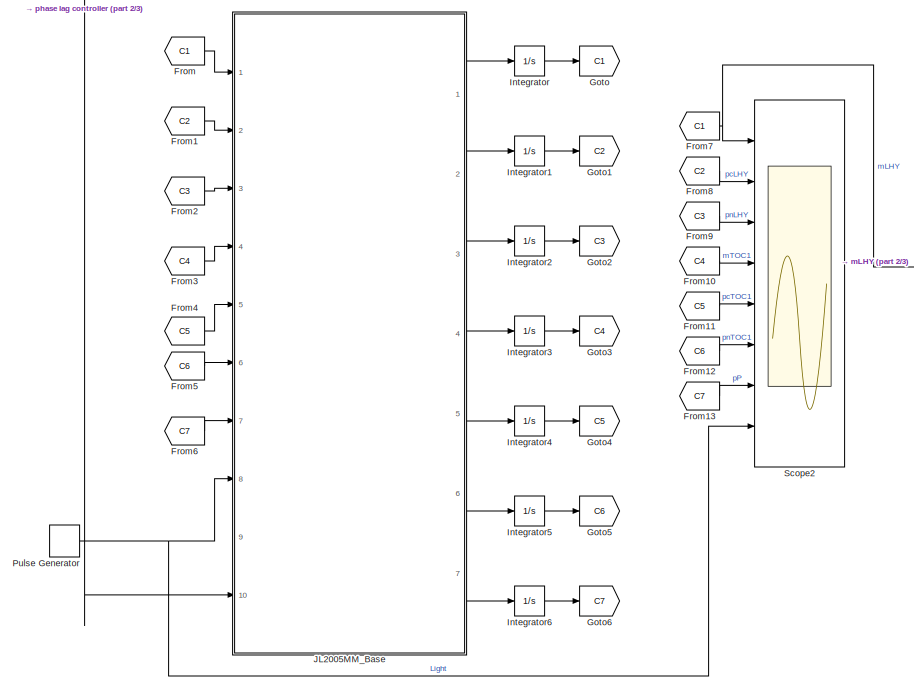
[diagram: root canvas - part 1/3, top left region]
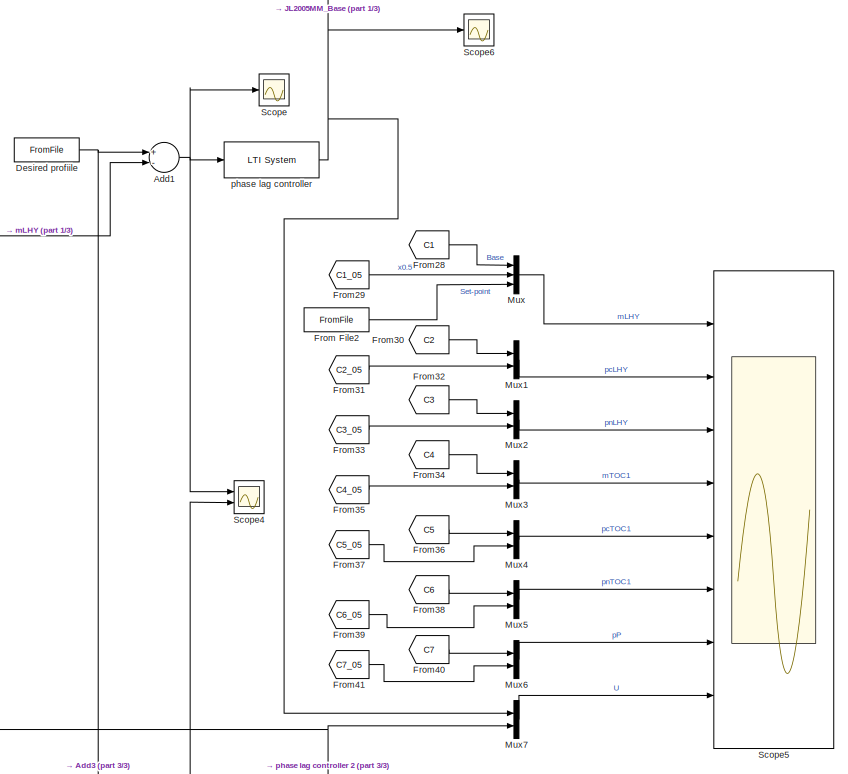
[diagram: root canvas - part 2/3, top right region]
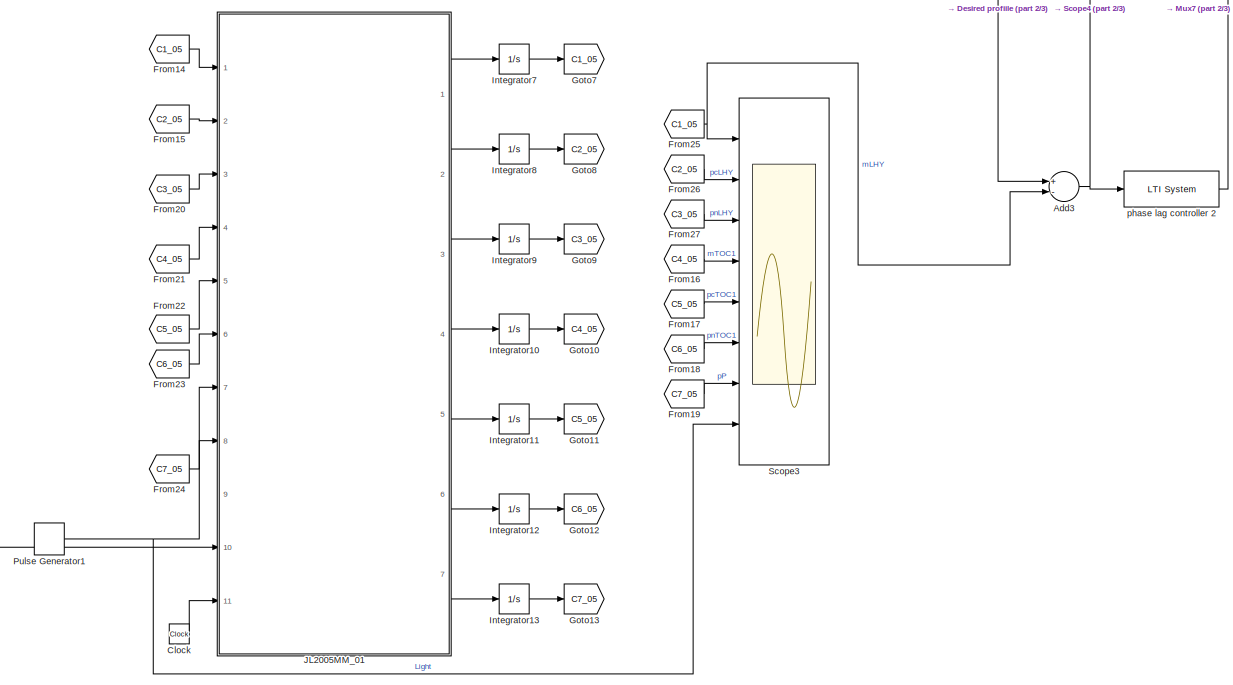
[diagram: root canvas - part 3/3, bottom center region]
MODEL slx_00e424663742
KIND model
CONFIG AbsTol = auto
CONFIG EnableMultiTasking = off
CONFIG FixedStep = auto
CONFIG MaxStep = auto
CONFIG MinStep = auto
CONFIG RelTol = 1e-3
CONFIG SampleTimeConstraint = Unconstrained
CONFIG Solver = VariableStepAuto
CONFIG SolverName = VariableStepAuto
CONFIG StartTime = 0.0
CONFIG StopTime = 96
BLOCK [Sum] Add1
  InputSameDT = off
  Inputs = +-
  OutDataTypeStr = Inherit: Inherit via internal rule
  Ports = [2, 1]
  SaturateOnIntegerOverflow = off
BLOCK [Sum] Add3
  InputSameDT = off
  Inputs = +-
  OutDataTypeStr = Inherit: Inherit via internal rule
  Ports = [2, 1]
  SaturateOnIntegerOverflow = off
BLOCK [Clock] Clock
BLOCK [FromFile] Desired profiile
  FileName = JL2005MMsetpoint.mat
  SampleTime = 0
BLOCK [From] From
  GotoTag = C1
BLOCK [FromFile] From File2
  FileName = JL2005MMsetpoint.mat
  SampleTime = 0
BLOCK [From] From1
  GotoTag = C2
BLOCK [From] From10
  GotoTag = C4
BLOCK [From] From11
  GotoTag = C5
BLOCK [From] From12
  GotoTag = C6
BLOCK [From] From13
  GotoTag = C7
BLOCK [From] From14
  GotoTag = C1_05
BLOCK [From] From15
  GotoTag = C2_05
BLOCK [From] From16
  GotoTag = C4_05
BLOCK [From] From17
  GotoTag = C5_05
BLOCK [From] From18
  GotoTag = C6_05
BLOCK [From] From19
  GotoTag = C7_05
BLOCK [From] From2
  GotoTag = C3
BLOCK [From] From20
  GotoTag = C3_05
BLOCK [From] From21
  GotoTag = C4_05
BLOCK [From] From22
  GotoTag = C5_05
BLOCK [From] From23
  GotoTag = C6_05
BLOCK [From] From24
  GotoTag = C7_05
BLOCK [From] From25
  GotoTag = C1_05
BLOCK [From] From26
  GotoTag = C2_05
BLOCK [From] From27
  GotoTag = C3_05
BLOCK [From] From28
  GotoTag = C1
BLOCK [From] From29
  GotoTag = C1_05
BLOCK [From] From3
  GotoTag = C4
BLOCK [From] From30
  GotoTag = C2
BLOCK [From] From31
  GotoTag = C2_05
BLOCK [From] From32
  GotoTag = C3
BLOCK [From] From33
  GotoTag = C3_05
BLOCK [From] From34
  GotoTag = C4
BLOCK [From] From35
  GotoTag = C4_05
BLOCK [From] From36
  GotoTag = C5
BLOCK [From] From37
  GotoTag = C5_05
BLOCK [From] From38
  GotoTag = C6
BLOCK [From] From39
  GotoTag = C6_05
BLOCK [From] From4
  GotoTag = C5
BLOCK [From] From40
  GotoTag = C7
BLOCK [From] From41
  GotoTag = C7_05
BLOCK [From] From5
  GotoTag = C6
BLOCK [From] From6
  GotoTag = C7
BLOCK [From] From7
  GotoTag = C1
BLOCK [From] From8
  GotoTag = C2
BLOCK [From] From9
  GotoTag = C3
BLOCK [Goto] Goto
  GotoTag = C1
BLOCK [Goto] Goto1
  GotoTag = C2
BLOCK [Goto] Goto10
  GotoTag = C4_05
BLOCK [Goto] Goto11
  GotoTag = C5_05
BLOCK [Goto] Goto12
  GotoTag = C6_05
BLOCK [Goto] Goto13
  GotoTag = C7_05
BLOCK [Goto] Goto2
  GotoTag = C3
BLOCK [Goto] Goto3
  GotoTag = C4
BLOCK [Goto] Goto4
  GotoTag = C5
BLOCK [Goto] Goto5
  GotoTag = C6
BLOCK [Goto] Goto6
  GotoTag = C7
BLOCK [Goto] Goto7
  GotoTag = C1_05
BLOCK [Goto] Goto8
  GotoTag = C2_05
BLOCK [Goto] Goto9
  GotoTag = C3_05
BLOCK [Integrator] Integrator
  InitialCondition = 2.3718
  Ports = [1, 1]
BLOCK [Integrator] Integrator1
  InitialCondition = 1.2970
  Ports = [1, 1]
BLOCK [Integrator] Integrator10
  InitialCondition = 0.0740
  Ports = [1, 1]
BLOCK [Integrator] Integrator11
  InitialCondition = 1.0775
  Ports = [1, 1]
BLOCK [Integrator] Integrator12
  InitialCondition = 1.3873
  Ports = [1, 1]
BLOCK [Integrator] Integrator13
  InitialCondition = 0.1463
  Ports = [1, 1]
BLOCK [Integrator] Integrator2
  InitialCondition = 0.6887
  Ports = [1, 1]
BLOCK [Integrator] Integrator3
  InitialCondition = 0.0740
  Ports = [1, 1]
BLOCK [Integrator] Integrator4
  InitialCondition = 1.0775
  Ports = [1, 1]
BLOCK [Integrator] Integrator5
  InitialCondition = 1.3873
  Ports = [1, 1]
BLOCK [Integrator] Integrator6
  InitialCondition = 0.1463
  Ports = [1, 1]
BLOCK [Integrator] Integrator7
  InitialCondition = 2.3718
  Ports = [1, 1]
BLOCK [Integrator] Integrator8
  InitialCondition = 1.2970
  Ports = [1, 1]
BLOCK [Integrator] Integrator9
  InitialCondition = 0.6887
  Ports = [1, 1]
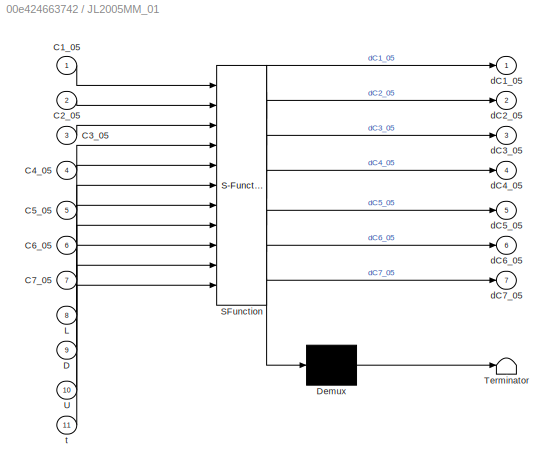
BLOCK [SubSystem] JL2005MM_01
  ErrorFcn = Stateflow.Translate.translate
  PermitHierarchicalResolution = ExplicitOnly
  Ports = [11, 7]
  RequestExecContextInheritance = off
  SFBlockType = MATLAB Function
  TreatAsAtomicUnit = on
  Variant = off
BLOCK [Demux] JL2005MM_01/ Demux 
  Outputs = 1
  Ports = [1, 1]
BLOCK [S-Function] JL2005MM_01/ SFunction 
  EnableBusSupport = on
  FunctionName = sf_sfun
  PortCounts = [11 8]
  Ports = [11, 8]
  SFcnIsStateOwnerBlock = off
  SFunctionDeploymentMode = off
  Tag = Stateflow S-Function S1File_JL2005MM 1
BLOCK [Terminator] JL2005MM_01/ Terminator 
BLOCK [Inport] JL2005MM_01/C1_05
  IconDisplay = Port number
BLOCK [Inport] JL2005MM_01/C2_05
  IconDisplay = Port number
  Port = 2
BLOCK [Inport] JL2005MM_01/C3_05
  IconDisplay = Port number
  Port = 3
BLOCK [Inport] JL2005MM_01/C4_05
  IconDisplay = Port number
  Port = 4
BLOCK [Inport] JL2005MM_01/C5_05
  IconDisplay = Port number
  Port = 5
BLOCK [Inport] JL2005MM_01/C6_05
  IconDisplay = Port number
  Port = 6
BLOCK [Inport] JL2005MM_01/C7_05
  IconDisplay = Port number
  Port = 7
BLOCK [Inport] JL2005MM_01/D
  IconDisplay = Port number
  Port = 9
BLOCK [Inport] JL2005MM_01/L
  IconDisplay = Port number
  Port = 8
BLOCK [Inport] JL2005MM_01/U
  IconDisplay = Port number
  Port = 10
BLOCK [Outport] JL2005MM_01/dC1_05
  IconDisplay = Port number
BLOCK [Outport] JL2005MM_01/dC2_05
  IconDisplay = Port number
  Port = 2
BLOCK [Outport] JL2005MM_01/dC3_05
  IconDisplay = Port number
  Port = 3
BLOCK [Outport] JL2005MM_01/dC4_05
  IconDisplay = Port number
  Port = 4
BLOCK [Outport] JL2005MM_01/dC5_05
  IconDisplay = Port number
  Port = 5
BLOCK [Outport] JL2005MM_01/dC6_05
  IconDisplay = Port number
  Port = 6
BLOCK [Outport] JL2005MM_01/dC7_05
  IconDisplay = Port number
  Port = 7
BLOCK [Inport] JL2005MM_01/t
  IconDisplay = Port number
  Port = 11
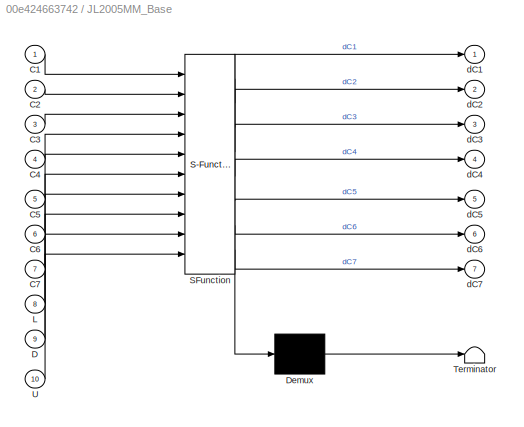
BLOCK [SubSystem] JL2005MM_Base
  ErrorFcn = Stateflow.Translate.translate
  PermitHierarchicalResolution = ExplicitOnly
  Ports = [10, 7]
  RequestExecContextInheritance = off
  SFBlockType = MATLAB Function
  TreatAsAtomicUnit = on
  Variant = off
BLOCK [Demux] JL2005MM_Base/ Demux 
  Outputs = 1
  Ports = [1, 1]
BLOCK [S-Function] JL2005MM_Base/ SFunction 
  EnableBusSupport = on
  FunctionName = sf_sfun
  PortCounts = [10 8]
  Ports = [10, 8]
  SFcnIsStateOwnerBlock = off
  SFunctionDeploymentMode = off
  Tag = Stateflow S-Function S1File_JL2005MM 2
BLOCK [Terminator] JL2005MM_Base/ Terminator 
BLOCK [Inport] JL2005MM_Base/C1
  IconDisplay = Port number
BLOCK [Inport] JL2005MM_Base/C2
  IconDisplay = Port number
  Port = 2
BLOCK [Inport] JL2005MM_Base/C3
  IconDisplay = Port number
  Port = 3
BLOCK [Inport] JL2005MM_Base/C4
  IconDisplay = Port number
  Port = 4
BLOCK [Inport] JL2005MM_Base/C5
  IconDisplay = Port number
  Port = 5
BLOCK [Inport] JL2005MM_Base/C6
  IconDisplay = Port number
  Port = 6
BLOCK [Inport] JL2005MM_Base/C7
  IconDisplay = Port number
  Port = 7
BLOCK [Inport] JL2005MM_Base/D
  IconDisplay = Port number
  Port = 9
BLOCK [Inport] JL2005MM_Base/L
  IconDisplay = Port number
  Port = 8
BLOCK [Inport] JL2005MM_Base/U
  IconDisplay = Port number
  Port = 10
BLOCK [Outport] JL2005MM_Base/dC1
  IconDisplay = Port number
BLOCK [Outport] JL2005MM_Base/dC2
  IconDisplay = Port number
  Port = 2
BLOCK [Outport] JL2005MM_Base/dC3
  IconDisplay = Port number
  Port = 3
BLOCK [Outport] JL2005MM_Base/dC4
  IconDisplay = Port number
  Port = 4
BLOCK [Outport] JL2005MM_Base/dC5
  IconDisplay = Port number
  Port = 5
BLOCK [Outport] JL2005MM_Base/dC6
  IconDisplay = Port number
  Port = 6
BLOCK [Outport] JL2005MM_Base/dC7
  IconDisplay = Port number
  Port = 7
BLOCK [Mux] Mux
  DisplayOption = bar
  Inputs = 3
  Ports = [3, 1]
BLOCK [Mux] Mux1
  DisplayOption = bar
  Inputs = 2
  Ports = [2, 1]
BLOCK [Mux] Mux2
  DisplayOption = bar
  Inputs = 2
  Ports = [2, 1]
BLOCK [Mux] Mux3
  DisplayOption = bar
  Inputs = 2
  Ports = [2, 1]
BLOCK [Mux] Mux4
  DisplayOption = bar
  Inputs = 2
  Ports = [2, 1]
BLOCK [Mux] Mux5
  DisplayOption = bar
  Inputs = 2
  Ports = [2, 1]
BLOCK [Mux] Mux6
  DisplayOption = bar
  Inputs = 2
  Ports = [2, 1]
BLOCK [Mux] Mux7
  DisplayOption = bar
  Inputs = 2
  Ports = [2, 1]
BLOCK [DiscretePulseGenerator] Pulse Generator
  Period = 24
  Ports = [0, 1]
  PulseType = Time based
  PulseWidth = 50
BLOCK [DiscretePulseGenerator] Pulse Generator1
  Period = 24
  Ports = [0, 1]
  PulseType = Time based
  PulseWidth = 50
BLOCK [Scope] Scope
  NumInputPorts = 1
  Ports = [1]
  ScopeSpecificationString = Simulink.scopes.TimeScopeBlockCfg('CurrentConfiguration', extmgr.ConfigurationSet(extmgr.Configuration('Core','General UI',true),extmgr.Configuration('Core','Source UI',true),extmgr.Configuration('Sources','WiredSimulink',true,'DataLoggingVariableName','ScopeData1'),extmgr.Configuration('Visuals','Time Domain',true,'SerializedDisplays',{struct('MinYLimReal','-0.30754','MaxYLimReal','0.61705','YLab...<+1417ch>
BLOCK [Scope] Scope2
  NumInputPorts = 8
  Ports = [8]
  ScopeSpecificationString = Simulink.scopes.TimeScopeBlockCfg('CurrentConfiguration', extmgr.ConfigurationSet(extmgr.Configuration('Core','General UI',true),extmgr.Configuration('Core','Source UI',true),extmgr.Configuration('Sources','WiredSimulink',true),extmgr.Configuration('Visuals','Time Domain',true,'SerializedDisplays',{struct('MinYLimReal','-0.29647','MaxYLimReal','2.66828','YLabelReal','','MinYLimMag','0.00000','MaxY...<+6220ch>
BLOCK [Scope] Scope3
  NumInputPorts = 8
  Ports = [8]
  ScopeSpecificationString = Simulink.scopes.TimeScopeBlockCfg('CurrentConfiguration', extmgr.ConfigurationSet(extmgr.Configuration('Core','General UI',true),extmgr.Configuration('Core','Source UI',true),extmgr.Configuration('Sources','WiredSimulink',true,'DataLoggingVariableName','ScopeData3'),extmgr.Configuration('Visuals','Time Domain',true,'SerializedDisplays',{struct('MinYLimReal','-0.30466','MaxYLimReal','2.81068','YLab...<+6227ch>
BLOCK [Scope] Scope4
  NumInputPorts = 2
  Ports = [2]
  ScopeSpecificationString = Simulink.scopes.TimeScopeBlockCfg('CurrentConfiguration', extmgr.ConfigurationSet(extmgr.Configuration('Core','General UI',true),extmgr.Configuration('Core','Source UI',true),extmgr.Configuration('Sources','WiredSimulink',true,'DataLoggingVariableName','ScopeData4'),extmgr.Configuration('Visuals','Time Domain',true,'SerializedDisplays',{struct('MinYLimReal','-0.36909','MaxYLimReal','1.17103','YLab...<+1424ch>
BLOCK [Scope] Scope5
  NumInputPorts = 8
  Ports = [8]
  ScopeSpecificationString = Simulink.scopes.TimeScopeBlockCfg('CurrentConfiguration', extmgr.ConfigurationSet(extmgr.Configuration('Core','General UI',true),extmgr.Configuration('Core','Source UI',true),extmgr.Configuration('Sources','WiredSimulink',true,'DataLoggingVariableName','ScopeData5'),extmgr.Configuration('Visuals','Time Domain',true,'SerializedDisplays',{struct('MinYLimReal','-93.66869','MaxYLimReal','13.12331','YL...<+6333ch>
BLOCK [Scope] Scope6
  NumInputPorts = 1
  Ports = [1]
  ScopeSpecificationString = Simulink.scopes.TimeScopeBlockCfg('CurrentConfiguration', extmgr.ConfigurationSet(extmgr.Configuration('Core','General UI',true),extmgr.Configuration('Core','Source UI',true),extmgr.Configuration('Sources','WiredSimulink',true,'DataLoggingVariableName','ScopeData1'),extmgr.Configuration('Visuals','Time Domain',true,'SerializedDisplays',{struct('MinYLimReal','-0.17351','MaxYLimReal','1.5616','YLabe...<+1438ch>
BLOCK [Reference] phase lag controller  REF=cstblocks/LTI System
  Ports = [1, 1]
  SourceBlock = cstblocks/LTI System
  SourceProductBaseCode = CT
  SourceProductName = Control System Toolbox
  SourceType = LTI Block
BLOCK [Reference] phase lag controller 2  REF=cstblocks/LTI System
  Ports = [1, 1]
  SourceBlock = cstblocks/LTI System
  SourceProductBaseCode = CT
  SourceProductName = Control System Toolbox
  SourceType = LTI Block
NET Add1:1 -> Scope4:1, Scope:1, phase lag controller:1
NET Add3:1 -> Scope4:2, phase lag controller 2:1
LINE Clock:1 -> JL2005MM_01:11
NET Desired profiile:1 -> Add1:1, Add3:1
LINE From File2:1 -> Mux:3
LINE From10:1 -> Scope2:4
LINE From11:1 -> Scope2:5
LINE From12:1 -> Scope2:6
LINE From13:1 -> Scope2:7
LINE From14:1 -> JL2005MM_01:1
LINE From15:1 -> JL2005MM_01:2
LINE From16:1 -> Scope3:4
LINE From17:1 -> Scope3:5
LINE From18:1 -> Scope3:6
LINE From19:1 -> Scope3:7
LINE From1:1 -> JL2005MM_Base:2
LINE From20:1 -> JL2005MM_01:3
LINE From21:1 -> JL2005MM_01:4
LINE From22:1 -> JL2005MM_01:5
LINE From23:1 -> JL2005MM_01:6
LINE From24:1 -> JL2005MM_01:7
NET From25:1 -> Add3:2, Scope3:1
LINE From26:1 -> Scope3:2
LINE From27:1 -> Scope3:3
LINE From28:1 -> Mux:1
LINE From29:1 -> Mux:2
LINE From2:1 -> JL2005MM_Base:3
LINE From30:1 -> Mux1:1
LINE From31:1 -> Mux1:2
LINE From32:1 -> Mux2:1
LINE From33:1 -> Mux2:2
LINE From34:1 -> Mux3:1
LINE From35:1 -> Mux3:2
LINE From36:1 -> Mux4:1
LINE From37:1 -> Mux4:2
LINE From38:1 -> Mux5:1
LINE From39:1 -> Mux5:2
LINE From3:1 -> JL2005MM_Base:4
LINE From40:1 -> Mux6:1
LINE From41:1 -> Mux6:2
LINE From4:1 -> JL2005MM_Base:5
LINE From5:1 -> JL2005MM_Base:6
LINE From6:1 -> JL2005MM_Base:7
NET From7:1 -> Add1:2, Scope2:1
LINE From8:1 -> Scope2:2
LINE From9:1 -> Scope2:3
LINE From:1 -> JL2005MM_Base:1
LINE Integrator10:1 -> Goto10:1
LINE Integrator11:1 -> Goto11:1
LINE Integrator12:1 -> Goto12:1
LINE Integrator13:1 -> Goto13:1
LINE Integrator1:1 -> Goto1:1
LINE Integrator2:1 -> Goto2:1
LINE Integrator3:1 -> Goto3:1
LINE Integrator4:1 -> Goto4:1
LINE Integrator5:1 -> Goto5:1
LINE Integrator6:1 -> Goto6:1
LINE Integrator7:1 -> Goto7:1
LINE Integrator8:1 -> Goto8:1
LINE Integrator9:1 -> Goto9:1
LINE Integrator:1 -> Goto:1
LINE JL2005MM_01:1 -> Integrator7:1
LINE JL2005MM_01:2 -> Integrator8:1
LINE JL2005MM_01:3 -> Integrator9:1
LINE JL2005MM_01:4 -> Integrator10:1
LINE JL2005MM_01:5 -> Integrator11:1
LINE JL2005MM_01:6 -> Integrator12:1
LINE JL2005MM_01:7 -> Integrator13:1
LINE JL2005MM_Base:1 -> Integrator:1
LINE JL2005MM_Base:2 -> Integrator1:1
LINE JL2005MM_Base:3 -> Integrator2:1
LINE JL2005MM_Base:4 -> Integrator3:1
LINE JL2005MM_Base:5 -> Integrator4:1
LINE JL2005MM_Base:6 -> Integrator5:1
LINE JL2005MM_Base:7 -> Integrator6:1
LINE Mux1:1 -> Scope5:2
LINE Mux2:1 -> Scope5:3
LINE Mux3:1 -> Scope5:4
LINE Mux4:1 -> Scope5:5
LINE Mux5:1 -> Scope5:6
LINE Mux6:1 -> Scope5:7
LINE Mux7:1 -> Scope5:8
LINE Mux:1 -> Scope5:1
NET Pulse Generator1:1 -> JL2005MM_01:8, Scope3:8
NET Pulse Generator:1 -> JL2005MM_Base:8, Scope2:8
NET phase lag controller 2:1 -> JL2005MM_01:10, Mux7:2
NET phase lag controller:1 -> JL2005MM_Base:10, Mux7:1, Scope6:1
note: NET lines group one-source signal fan-out (src -> all destinations, sorted); 1:1 wires keep LINE
CHART JL2005MM_01 states=1 transitions=1
  STATE_LABEL 'eML_blk_kernel()'
  STATE_LABEL 'SCRIPT:\nfunction [dC1_05,dC2_05,dC3_05,dC4_05,dC5_05,dC6_05,dC7_05] = fcn(C1_05,C2_05,C3_05,C4_05,C5_05,C6_05,C7_05,L,D,U,t)\n\n% Base level from Locke et al (2005) (MSE = 0.0627)\n% prmLHY = [2.9741,16.9711,3.03510,9.3383,1.3294];\n% prpcLHY = [4.9753,1.4563,0.8421,16.9058,0.8085];\n% prpnLHY = [1.4563,0.8421,1.0214,0.1445];\n% prmTOC1 = [0.1943,0.386,1.6859,0.2089];\n% prpcTOC1 = [1.2947,0.0451,0.0018,...<+3608ch>'
CHART JL2005MM_Base states=1 transitions=1
  STATE_LABEL 'eML_blk_kernel()'
  STATE_LABEL 'SCRIPT:\nfunction [dC1,dC2,dC3,dC4,dC5,dC6,dC7] = fcn(C1,C2,C3,C4,C5,C6,C7,L,D,U)\n\n% Base level from Locke et al (2005) (MSE = 0.0627)\nprmLHY = [2.9741,16.9711,3.03510,9.3383,1.3294];\nprpcLHY = [4.9753,1.4563,0.8421,16.9058,0.8085];\nprpnLHY = [1.4563,0.8421,1.0214,0.1445];\nprmTOC1 = [0.1943,0.386,1.6859,0.2089];\nprpcTOC1 = [1.2947,0.0451,0.0018,0.4212,0.3187];\nprpnTOC1 = [0.0451,0.0018,0.0484,0.350...<+2485ch>'
